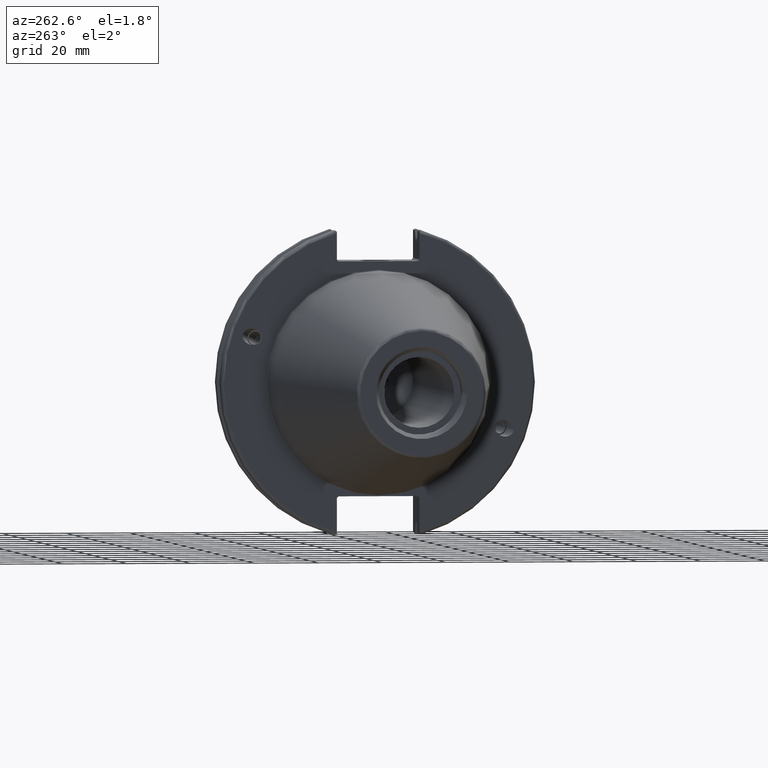
[diagram: clean part render]
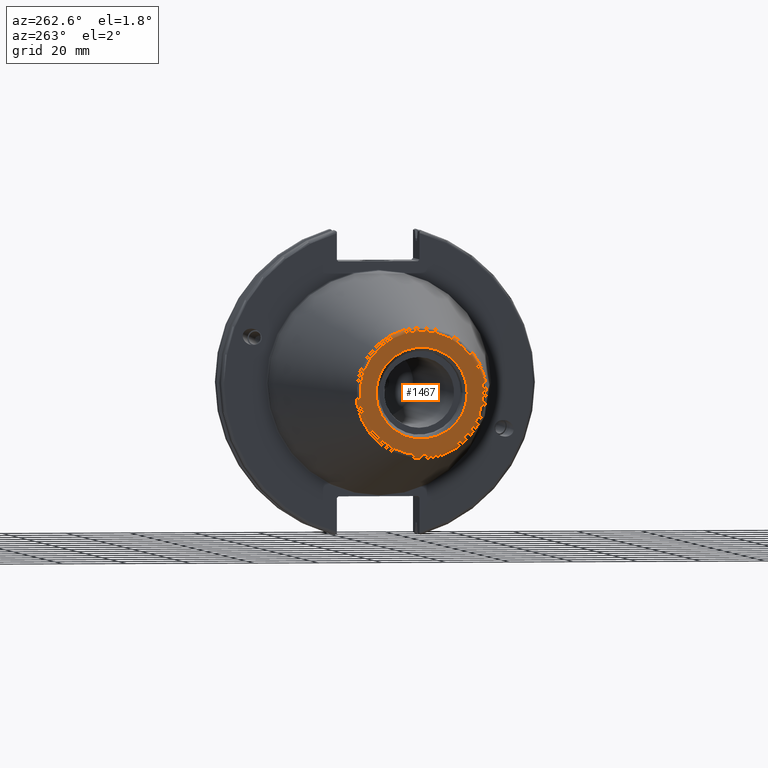
[diagram: same view with one face highlighted and labeled with its STEP entity id]
A machine part, auxiliary view. The second image highlights one B-rep face of the part: STEP entity #1467.
In plain terms, the highlighted planar face has unit normal (-1, 0, 0).
Its self-contained STEP definition (entity closure, byte-faithful):
#112=FACE_BOUND('',#500,.T.);
#133=PLANE('',#1633);
#401=FACE_OUTER_BOUND('',#499,.T.);
#499=EDGE_LOOP('',(#1272));
#500=EDGE_LOOP('',(#1273));
#589=CIRCLE('',#1632,19.2435889303637);
#590=CIRCLE('',#1634,14.2875);
#736=VERTEX_POINT('',#2919);
#737=VERTEX_POINT('',#2923);
#932=EDGE_CURVE('',#736,#736,#589,.T.);
#933=EDGE_CURVE('',#737,#737,#590,.T.);
#1272=ORIENTED_EDGE('',*,*,#932,.F.);
#1273=ORIENTED_EDGE('',*,*,#933,.T.);
#1467=ADVANCED_FACE('',(#401,#112),#133,.T.);
#1632=AXIS2_PLACEMENT_3D('',#2921,#1974,#1975);
#1633=AXIS2_PLACEMENT_3D('',#2922,#1976,#1977);
#1634=AXIS2_PLACEMENT_3D('',#2924,#1978,#1979);
#1974=DIRECTION('center_axis',(1.,0.,0.));
#1975=DIRECTION('ref_axis',(0.,-1.,1.83697019872103E-16));
#1976=DIRECTION('center_axis',(-1.,0.,0.));
#1977=DIRECTION('ref_axis',(0.,0.,1.));
#1978=DIRECTION('center_axis',(1.,0.,0.));
#1979=DIRECTION('ref_axis',(0.,0.,-1.));
#2919=CARTESIAN_POINT('',(-101.6,-2.35665995876774E-15,19.2435889303637));
#2921=CARTESIAN_POINT('Origin',(-101.6,0.,0.));
#2922=CARTESIAN_POINT('Origin',(-101.6,20.1083333333333,0.));
#2923=CARTESIAN_POINT('',(-101.6,-14.2875,-1.74971411428178E-15));
#2924=CARTESIAN_POINT('Origin',(-101.6,0.,0.));